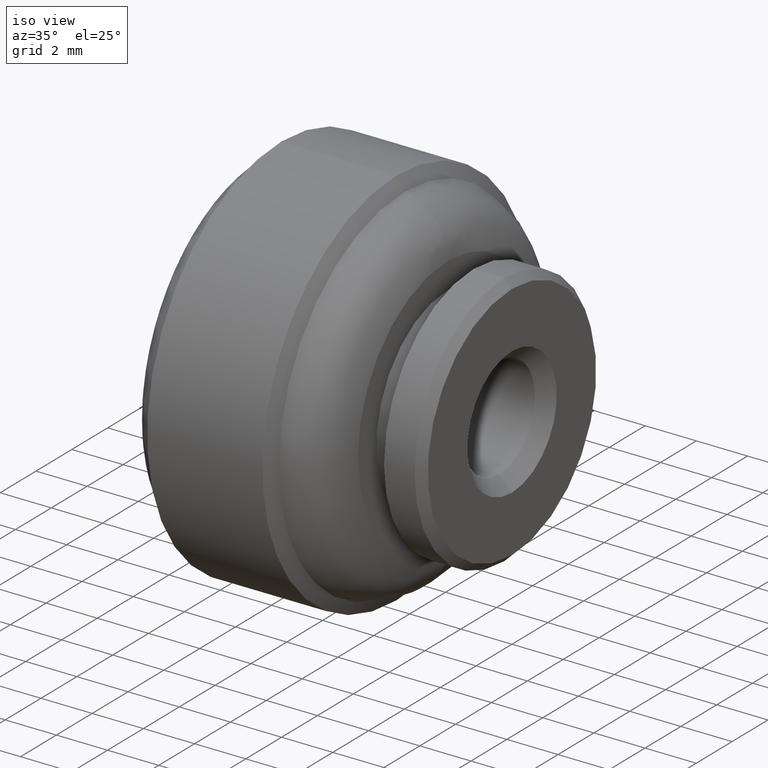
[diagram: clean part render]
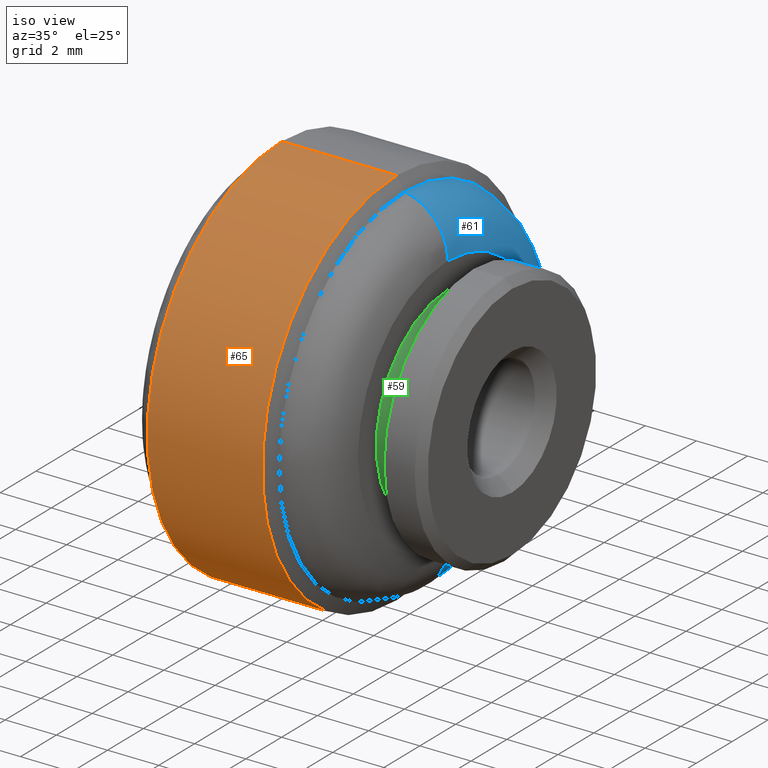
[diagram: same view with three faces highlighted in distinct colors, each labeled with its STEP entity id]
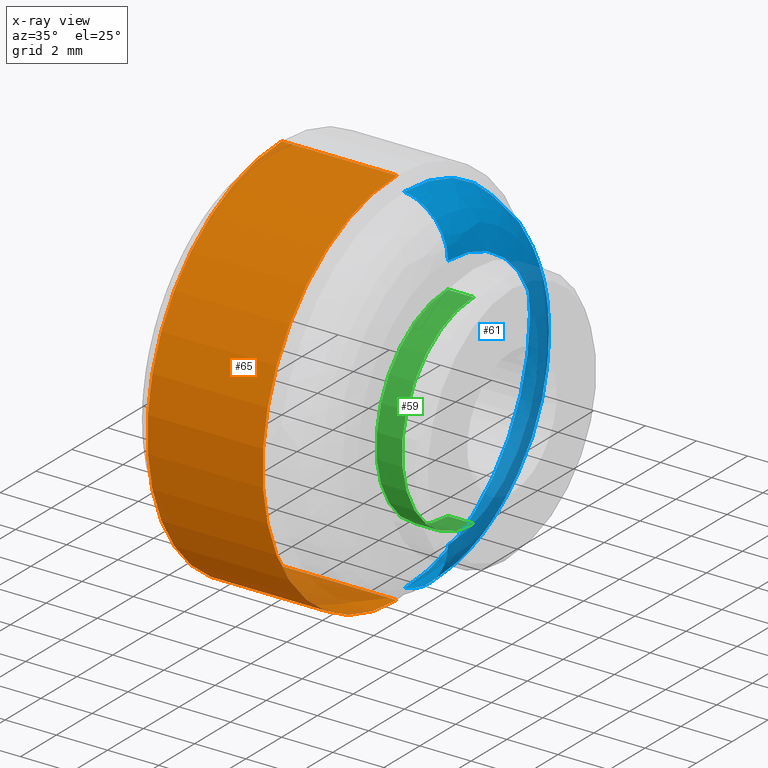
[diagram: x-ray of the same camera — body ghosted, the three highlighted faces saturated]
A machine part, iso view with three faces highlighted in distinct colors.
The next image is the same camera in x-ray (body ghosted, the three faces saturated) — at least one of them is partly hidden behind the body in this view.
Their STEP definitions:

[orange] entity #65 — the highlighted cylindrical surface (partial cylindrical patch) has radius 7.5 mm, axis along (1, -0, -0).
#65=ADVANCED_FACE('',(#324),#323,.T.);
#323=CYLINDRICAL_SURFACE('',#606,7.50000000000E+00);
#324=FACE_OUTER_BOUND('',#607,.T.);
#603=CARTESIAN_POINT('',(0.00000000000E+00,0.00000000000E+00,0.00000000000E+00));
#604=DIRECTION('',(1.00000000000E+00,-0.00000000000E+00,-0.00000000000E+00));
#605=DIRECTION('',(0.00000000000E+00,0.00000000000E+00,-1.00000000000E+00));
#606=AXIS2_PLACEMENT_3D('',#603,#604,#605);
#607=EDGE_LOOP('',(#778,#779,#780,#781));
#778=ORIENTED_EDGE('',*,*,#849,.F.);
#779=ORIENTED_EDGE('',*,*,#846,.T.);
#780=ORIENTED_EDGE('',*,*,#842,.T.);
#781=ORIENTED_EDGE('',*,*,#848,.F.);
#842=EDGE_CURVE('',#1147,#1148,#1149,.T.);
#846=EDGE_CURVE('',#1173,#1147,#1174,.T.);
#848=EDGE_CURVE('',#1180,#1148,#1187,.T.);
#849=EDGE_CURVE('',#1173,#1180,#1193,.T.);
#1147=VERTEX_POINT('',#1408);
#1148=VERTEX_POINT('',#1409);
#1149=CIRCLE('',#1413,7.50000000000E+00);
#1173=VERTEX_POINT('',#1422);
#1174=(BOUNDED_CURVE() B_SPLINE_CURVE(1,(#1423,#1424),.UNSPECIFIED.,.F.,.F.) B_SPLINE_CURVE_WITH_KNOTS((2,2),(8.33333313467E-02,9.16666670832E-01),.UNSPECIFIED.) CURVE() GEOMETRIC_REPRESENTATION_ITEM() RATIONAL_B_SPLINE_CURVE((1.00000000000E+00,1.00000000000E+00)) REPRESENTATION_ITEM('') );
#1180=VERTEX_POINT('',#1425);
#1187=(BOUNDED_CURVE() B_SPLINE_CURVE(1,(#1430,#1431),.UNSPECIFIED.,.F.,.F.) B_SPLINE_CURVE_WITH_KNOTS((2,2),(8.33333333333E-02,9.16666666667E-01),.UNSPECIFIED.) CURVE() GEOMETRIC_REPRESENTATION_ITEM() RATIONAL_B_SPLINE_CURVE((7.50000000000E-01,7.50000000000E-01)) REPRESENTATION_ITEM('') );
#1193=CIRCLE('',#1435,7.50000000000E+00);
#1408=CARTESIAN_POINT('',(-4.50000000000E+00,5.92118946467E-16,-7.50000000000E+00));
#1409=CARTESIAN_POINT('',(-4.50000000000E+00,0.00000000000E+00,7.50000000000E+00));
#1410=CARTESIAN_POINT('',(-4.50000000000E+00,0.00000000000E+00,0.00000000000E+00));
#1411=DIRECTION('',(-1.00000000000E+00,0.00000000000E+00,0.00000000000E+00));
#1412=DIRECTION('',(0.00000000000E+00,-1.22460635382E-16,1.00000000000E+00));
#1413=AXIS2_PLACEMENT_3D('',#1410,#1411,#1412);
#1422=CARTESIAN_POINT('',(-9.00000000000E+00,5.92118946467E-16,-7.50000000000E+00));
#1423=CARTESIAN_POINT('',(-9.00000001073E+00,0.00000000000E+00,-7.50000000000E+00));
#1424=CARTESIAN_POINT('',(-4.49999997751E+00,0.00000000000E+00,-7.50000000000E+00));
#1425=CARTESIAN_POINT('',(-9.00000000000E+00,0.00000000000E+00,7.50000000000E+00));
#1430=CARTESIAN_POINT('',(-9.00000000000E+00,-2.96059473233E-16,7.50000000000E+00));
#1431=CARTESIAN_POINT('',(-4.50000000000E+00,-2.96059473233E-16,7.50000000000E+00));
#1432=CARTESIAN_POINT('',(-9.00000000000E+00,0.00000000000E+00,0.00000000000E+00));
#1433=DIRECTION('',(-1.00000000000E+00,0.00000000000E+00,0.00000000000E+00));
#1434=DIRECTION('',(0.00000000000E+00,-1.22460635382E-16,1.00000000000E+00));
#1435=AXIS2_PLACEMENT_3D('',#1432,#1433,#1434);

[blue] entity #61 — the highlighted face is a freeform B-spline surface patch.
#61=ADVANCED_FACE('',(#284),#283,.T.);
#283=( BOUNDED_SURFACE() B_SPLINE_SURFACE( 2,2,((#550,#551,#552,#553,#554),(#555,#556,#557,#558,#559),(#560,#561,#562,#563,#564),(#565,#566,#567,#568,#569),(#570,#571,#572,#573,#574)), .UNSPECIFIED.,.F.,.F.,.F.) B_SPLINE_SURFACE_WITH_KNOTS((3,2,3),(3,2,3),(0.00000000000E+00,5.00000000000E-01,1.00000000000E+00),(0.00000000000E+00,5.00000000000E-01,1.00000000000E+00), .UNSPECIFIED. ) GEOMETRIC_REPRESENTATION_ITEM() RATIONAL_B_SPLINE_SURFACE(((1.00000000000E+00,7.58279710673E-01,1.00000000000E+00,7.58279710673E-01,1.00000000000E+00),(7.07106781187E-01,5.36184725453E-01,7.07106781187E-01,5.36184725453E-01,7.07106781187E-01),(1.00000000000E+00,7.58279710673E-01,1.00000000000E+00,7.58279710673E-01,1.00000000000E+00),(7.07106781187E-01,5.36184725453E-01,7.07106781187E-01,5.36184725453E-01,7.07106781187E-01),(1.00000000000E+00,7.58279710673E-01,1.00000000000E+00,7.58279710673E-01,1.00000000000E+00))) REPRESENTATION_ITEM('') SURFACE() );
#284=FACE_OUTER_BOUND('',#575,.T.);
#550=CARTESIAN_POINT('',(-4.20004752153E+00,-1.23168989309E-20,3.04532079745E+00));
#551=CARTESIAN_POINT('',(-2.50000000000E+00,-1.33599171232E-20,3.30320429646E+00));
#552=CARTESIAN_POINT('',(-2.50000000000E+00,-2.03144733757E-20,5.02270000000E+00));
#553=CARTESIAN_POINT('',(-2.50000000000E+00,-2.72690296281E-20,6.74219570354E+00));
#554=CARTESIAN_POINT('',(-4.20004752153E+00,-2.83120478204E-20,7.00007920255E+00));
#555=CARTESIAN_POINT('',(-4.20004752153E+00,3.04532079745E+00,3.04532079745E+00));
#556=CARTESIAN_POINT('',(-2.50000000000E+00,3.30320429646E+00,3.30320429646E+00));
#557=CARTESIAN_POINT('',(-2.50000000000E+00,5.02270000000E+00,5.02270000000E+00));
#558=CARTESIAN_POINT('',(-2.50000000000E+00,6.74219570354E+00,6.74219570354E+00));
#559=CARTESIAN_POINT('',(-4.20004752153E+00,7.00007920255E+00,7.00007920255E+00));
#560=CARTESIAN_POINT('',(-4.20004752153E+00,3.04532079745E+00,1.86484435248E-16));
#561=CARTESIAN_POINT('',(-2.50000000000E+00,3.30320429646E+00,2.02276288346E-16));
#562=CARTESIAN_POINT('',(-2.50000000000E+00,5.02270000000E+00,3.07571988377E-16));
#563=CARTESIAN_POINT('',(-2.50000000000E+00,6.74219570354E+00,4.12867688408E-16));
#564=CARTESIAN_POINT('',(-4.20004752153E+00,7.00007920255E+00,4.28659541507E-16));
#565=CARTESIAN_POINT('',(-4.20004752153E+00,3.04532079745E+00,-3.04532079745E+00));
#566=CARTESIAN_POINT('',(-2.50000000000E+00,3.30320429646E+00,-3.30320429646E+00));
#567=CARTESIAN_POINT('',(-2.50000000000E+00,5.02270000000E+00,-5.02270000000E+00));
#568=CARTESIAN_POINT('',(-2.50000000000E+00,6.74219570354E+00,-6.74219570354E+00));
#569=CARTESIAN_POINT('',(-4.20004752153E+00,7.00007920255E+00,-7.00007920255E+00));
#570=CARTESIAN_POINT('',(-4.20004752153E+00,3.72956553597E-16,-3.04532079745E+00));
#571=CARTESIAN_POINT('',(-2.50000000000E+00,4.04539216776E-16,-3.30320429646E+00));
#572=CARTESIAN_POINT('',(-2.50000000000E+00,6.15123662281E-16,-5.02270000000E+00));
#573=CARTESIAN_POINT('',(-2.50000000000E+00,8.25708107787E-16,-6.74219570354E+00));
#574=CARTESIAN_POINT('',(-4.20004752153E+00,8.57290770965E-16,-7.00007920255E+00));
#575=EDGE_LOOP('',(#762,#763,#764,#765));
#762=ORIENTED_EDGE('',*,*,#809,.T.);
#763=ORIENTED_EDGE('',*,*,#839,.T.);
#764=ORIENTED_EDGE('',*,*,#841,.F.);
#765=ORIENTED_EDGE('',*,*,#840,.F.);
#809=EDGE_CURVE('',#927,#926,#934,.T.);
#839=EDGE_CURVE('',#926,#1121,#1129,.T.);
#840=EDGE_CURVE('',#927,#1122,#1135,.T.);
#841=EDGE_CURVE('',#1122,#1121,#1141,.T.);
#926=VERTEX_POINT('',#1287);
#927=VERTEX_POINT('',#1288);
#934=CIRCLE('',#1296,5.02270000000E+00);
#1121=VERTEX_POINT('',#1390);
#1122=VERTEX_POINT('',#1391);
#1129=(BOUNDED_CURVE() B_SPLINE_CURVE(2,(#1396,#1397,#1398),.UNSPECIFIED.,.F.,.F.) B_SPLINE_CURVE_WITH_KNOTS((3,3),(5.00000000000E-01,1.00000000000E+00),.UNSPECIFIED.) CURVE() GEOMETRIC_REPRESENTATION_ITEM() RATIONAL_B_SPLINE_CURVE((1.00000000000E+00,7.58279710673E-01,1.00000000000E+00)) REPRESENTATION_ITEM('') );
#1135=(BOUNDED_CURVE() B_SPLINE_CURVE(3,(#1399,#1400,#1401,#1402,#1403),.UNSPECIFIED.,.F.,.F.) B_SPLINE_CURVE_WITH_KNOTS((4,1,4),(4.99999695311E-01,7.49999828711E-01,1.00000000000E+00),.UNSPECIFIED.) CURVE() GEOMETRIC_REPRESENTATION_ITEM() RATIONAL_B_SPLINE_CURVE((1.00000000000E+00,1.00000000000E+00,1.00000000000E+00,1.00000000000E+00,1.00000000000E+00)) REPRESENTATION_ITEM('') );
#1141=CIRCLE('',#1407,7.00007920255E+00);
#1287=CARTESIAN_POINT('',(-2.50000000000E+00,2.96059473233E-16,-5.02270000000E+00));
#1288=CARTESIAN_POINT('',(-2.50000000000E+00,0.00000000000E+00,5.02270000000E+00));
#1293=CARTESIAN_POINT('',(-2.50000000000E+00,0.00000000000E+00,0.00000000000E+00));
#1294=DIRECTION('',(-1.00000000000E+00,0.00000000000E+00,0.00000000000E+00));
#1295=DIRECTION('',(0.00000000000E+00,-1.22460635382E-16,1.00000000000E+00));
#1296=AXIS2_PLACEMENT_3D('',#1293,#1294,#1295);
#1390=CARTESIAN_POINT('',(-4.20004752153E+00,0.00000000000E+00,-7.00007920255E+00));
#1391=CARTESIAN_POINT('',(-4.20004752153E+00,0.00000000000E+00,7.00007920255E+00));
#1396=CARTESIAN_POINT('',(-2.50000000000E+00,-6.15083033334E-16,-5.02270000000E+00));
#1397=CARTESIAN_POINT('',(-2.50000000000E+00,-8.25653569727E-16,-6.74219570354E+00));
#1398=CARTESIAN_POINT('',(-4.20004752153E+00,-8.57234146870E-16,-7.00007920255E+00));
#1399=CARTESIAN_POINT('',(-2.50000000000E+00,5.92118760080E-16,5.02269841092E+00));
#1400=CARTESIAN_POINT('',(-2.49704894922E+00,6.43556658683E-16,5.49253603494E+00));
#1401=CARTESIAN_POINT('',(-2.85081492619E+00,7.64064519417E-16,6.44058212098E+00));
#1402=CARTESIAN_POINT('',(-3.73508134387E+00,8.59157359852E-16,6.93253201844E+00));
#1403=CARTESIAN_POINT('',(-4.20004752153E+00,8.88178419700E-16,7.00007920255E+00));
#1404=CARTESIAN_POINT('',(-4.20004752153E+00,0.00000000000E+00,0.00000000000E+00));
#1405=DIRECTION('',(-1.00000000000E+00,0.00000000000E+00,0.00000000000E+00));
#1406=DIRECTION('',(0.00000000000E+00,-1.22460635382E-16,1.00000000000E+00));
#1407=AXIS2_PLACEMENT_3D('',#1404,#1405,#1406);

[green] entity #59 — the highlighted cylindrical surface (partial cylindrical patch) has radius 4 mm, axis along (1, -0, -0).
#59=ADVANCED_FACE('',(#264),#263,.T.);
#263=CYLINDRICAL_SURFACE('',#522,4.00000000000E+00);
#264=FACE_OUTER_BOUND('',#523,.T.);
#519=CARTESIAN_POINT('',(0.00000000000E+00,0.00000000000E+00,0.00000000000E+00));
#520=DIRECTION('',(1.00000000000E+00,-0.00000000000E+00,-0.00000000000E+00));
#521=DIRECTION('',(-0.00000000000E+00,-0.00000000000E+00,-1.00000000000E+00));
#522=AXIS2_PLACEMENT_3D('',#519,#520,#521);
#523=EDGE_LOOP('',(#754,#755,#756,#757));
#754=ORIENTED_EDGE('',*,*,#811,.F.);
#755=ORIENTED_EDGE('',*,*,#836,.T.);
#756=ORIENTED_EDGE('',*,*,#806,.T.);
#757=ORIENTED_EDGE('',*,*,#837,.F.);
#806=EDGE_CURVE('',#912,#913,#914,.T.);
#811=EDGE_CURVE('',#941,#940,#948,.T.);
#836=EDGE_CURVE('',#941,#912,#1109,.T.);
#837=EDGE_CURVE('',#940,#913,#1115,.T.);
#912=VERTEX_POINT('',#1277);
#913=VERTEX_POINT('',#1278);
#914=CIRCLE('',#1282,4.00000000000E+00);
#940=VERTEX_POINT('',#1297);
#941=VERTEX_POINT('',#1298);
#948=CIRCLE('',#1306,4.00000000000E+00);
#1109=(BOUNDED_CURVE() B_SPLINE_CURVE(1,(#1386,#1387),.UNSPECIFIED.,.F.,.F.) B_SPLINE_CURVE_WITH_KNOTS((2,2),(8.33332935974E-02,9.16666633252E-01),.UNSPECIFIED.) CURVE() GEOMETRIC_REPRESENTATION_ITEM() RATIONAL_B_SPLINE_CURVE((1.00000000000E+00,1.00000000000E+00)) REPRESENTATION_ITEM('') );
#1115=(BOUNDED_CURVE() B_SPLINE_CURVE(1,(#1388,#1389),.UNSPECIFIED.,.F.,.F.) B_SPLINE_CURVE_WITH_KNOTS((2,2),(8.33333333333E-02,9.16666666667E-01),.UNSPECIFIED.) CURVE() GEOMETRIC_REPRESENTATION_ITEM() RATIONAL_B_SPLINE_CURVE((7.50000000000E-01,7.50000000000E-01)) REPRESENTATION_ITEM('') );
#1277=CARTESIAN_POINT('',(-1.50000000000E+00,4.44089209850E-16,-4.00000000000E+00));
#1278=CARTESIAN_POINT('',(-1.50000000000E+00,0.00000000000E+00,4.00000000000E+00));
#1279=CARTESIAN_POINT('',(-1.50000000000E+00,0.00000000000E+00,0.00000000000E+00));
#1280=DIRECTION('',(-1.00000000000E+00,0.00000000000E+00,0.00000000000E+00));
#1281=DIRECTION('',(0.00000000000E+00,-1.22460635382E-16,1.00000000000E+00));
#1282=AXIS2_PLACEMENT_3D('',#1279,#1280,#1281);
#1297=CARTESIAN_POINT('',(-2.50000000000E+00,0.00000000000E+00,4.00000000000E+00));
#1298=CARTESIAN_POINT('',(-2.50000000000E+00,4.44089209850E-16,-4.00000000000E+00));
#1303=CARTESIAN_POINT('',(-2.50000000000E+00,0.00000000000E+00,0.00000000000E+00));
#1304=DIRECTION('',(-1.00000000000E+00,0.00000000000E+00,0.00000000000E+00));
#1305=DIRECTION('',(0.00000000000E+00,-1.22460635382E-16,1.00000000000E+00));
#1306=AXIS2_PLACEMENT_3D('',#1303,#1304,#1305);
#1386=CARTESIAN_POINT('',(-2.50000004768E+00,0.00000000000E+00,-4.00000000000E+00));
#1387=CARTESIAN_POINT('',(-1.50000004010E+00,0.00000000000E+00,-4.00000000000E+00));
#1388=CARTESIAN_POINT('',(-2.50000000000E+00,-1.48029736617E-16,4.00000000000E+00));
#1389=CARTESIAN_POINT('',(-1.50000000000E+00,-1.48029736617E-16,4.00000000000E+00));